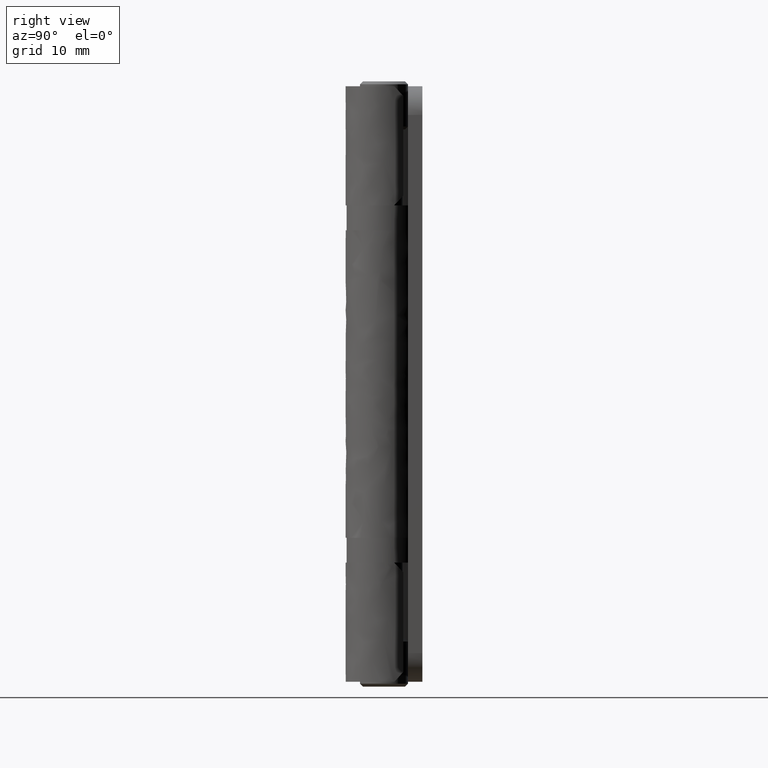
[diagram: clean part render]
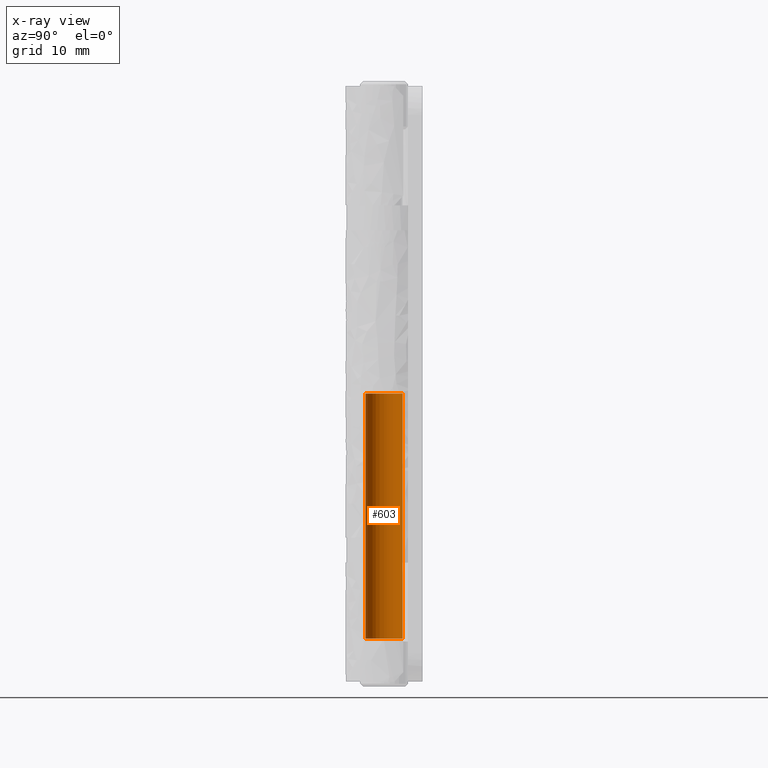
[diagram: x-ray — body ghosted, one internal face saturated and labeled with its STEP entity id]
A machine part, right view, then the same camera in x-ray: the body is ghosted and one INTERNAL B-rep face — a face not visible from any outside direction — is saturated and labeled: STEP entity #603.
In plain terms, the highlighted face is a freeform B-spline surface patch.
Its self-contained STEP definition (entity closure, byte-faithful):
#470=CARTESIAN_POINT('',(-1.924999999999833,0.0,4.499999999975998));
#471=VERTEX_POINT('',#470);
#472=CARTESIAN_POINT('',(-0.117518438749276,-1.921409486953075,4.499999999975998));
#473=VERTEX_POINT('',#472);
#474=CARTESIAN_POINT('',(-1.924999999999833,0.0,4.499999999975998));
#475=CARTESIAN_POINT('',(-1.924999999999832,-1.810859178656689,4.499999999975997));
#476=CARTESIAN_POINT('',(-0.117518438749276,-1.921409486953075,4.499999999975998));
#484=(BOUNDED_CURVE()B_SPLINE_CURVE(2,(#474,#475,#476),.UNSPECIFIED.,.F.,.U.)B_SPLINE_CURVE_WITH_KNOTS((3,3),(0.500000000000000,0.739332962228975),.UNSPECIFIED.)CURVE()GEOMETRIC_REPRESENTATION_ITEM()RATIONAL_B_SPLINE_CURVE((1.0,0.719603993298388,0.976072041645355))REPRESENTATION_ITEM(''));
#485=EDGE_CURVE('',#471,#473,#484,.T.);
#487=CARTESIAN_POINT('',(0.117518438749269,1.921409486953075,4.499999999975998));
#488=VERTEX_POINT('',#487);
#489=CARTESIAN_POINT('',(0.117518438749269,1.921409486953075,4.499999999975991));
#490=CARTESIAN_POINT('',(0.058814069422320,1.924999999999830,4.499999999975991));
#491=CARTESIAN_POINT('',(-3.245207E-015,1.924999999999830,4.499999999975998));
#492=CARTESIAN_POINT('',(-1.924999999999833,1.924999999999830,4.499999999975998));
#493=CARTESIAN_POINT('',(-1.924999999999833,0.0,4.499999999975998));
#501=(BOUNDED_CURVE()B_SPLINE_CURVE(2,(#489,#490,#491,#492,#493),.UNSPECIFIED.,.F.,.U.)B_SPLINE_CURVE_WITH_KNOTS((3,2,3),(0.239332962228975,0.250000000000000,0.500000000000000),.UNSPECIFIED.)CURVE()GEOMETRIC_REPRESENTATION_ITEM()RATIONAL_B_SPLINE_CURVE((0.976072041645356,0.987502787888160,1.0,0.707106781186548,1.0))REPRESENTATION_ITEM(''));
#502=EDGE_CURVE('',#488,#471,#501,.T.);
#537=CARTESIAN_POINT('',(0.117518438604586,1.921409486961924,3.862499999975391));
#538=CARTESIAN_POINT('',(-1.803891048357338,2.038927925566513,3.862499999975391));
#539=CARTESIAN_POINT('',(-1.921409486961927,0.117518438604589,3.862499999975391));
#540=CARTESIAN_POINT('',(-2.038927925566517,-1.803891048357335,3.862499999975391));
#541=CARTESIAN_POINT('',(-0.117518438604593,-1.921409486961924,3.862499999975391));
#542=CARTESIAN_POINT('',(0.117518438604589,1.921409486961924,30.653437500000621));
#543=CARTESIAN_POINT('',(-1.803891048357335,2.038927925566513,30.653437500000621));
#544=CARTESIAN_POINT('',(-1.921409486961924,0.117518438604589,30.653437500000621));
#545=CARTESIAN_POINT('',(-2.038927925566513,-1.803891048357335,30.653437500000621));
#546=CARTESIAN_POINT('',(-0.117518438604589,-1.921409486961924,30.653437500000621));
#554=(BOUNDED_SURFACE()B_SPLINE_SURFACE(2,1,((#537,#542),(#538,#543),(#539,#544),(#540,#545),(#541,#546)),.UNSPECIFIED.,.F.,.F.,.U.)B_SPLINE_SURFACE_WITH_KNOTS((3,2,3),(2,2),(0.0,3.189444430272549,6.378888860545098),(0.0,26.790937500025230),.UNSPECIFIED.)GEOMETRIC_REPRESENTATION_ITEM()RATIONAL_B_SPLINE_SURFACE(((1.0,1.0),(0.707106781186548,0.707106781186548),(1.0,1.0),(0.707106781186548,0.707106781186548),(1.0,1.0)))REPRESENTATION_ITEM('')SURFACE());
#555=ORIENTED_EDGE('',*,*,#502,.T.);
#556=ORIENTED_EDGE('',*,*,#485,.T.);
#557=CARTESIAN_POINT('',(-0.117518438749272,-1.921409486953075,30.0));
#558=VERTEX_POINT('',#557);
#559=CARTESIAN_POINT('',(-0.117518438749276,-1.921409486953075,4.499999999975998));
#560=CARTESIAN_POINT('',(-0.117518438749272,-1.921409486953075,30.0));
#561=QUASI_UNIFORM_CURVE('',1,(#559,#560),.UNSPECIFIED.,.F.,.U.);
#562=EDGE_CURVE('',#473,#558,#561,.T.);
#563=ORIENTED_EDGE('',*,*,#562,.T.);
#564=CARTESIAN_POINT('',(-1.924999999999830,0.0,30.0));
#565=VERTEX_POINT('',#564);
#566=CARTESIAN_POINT('',(-1.924999999999830,0.0,30.0));
#567=CARTESIAN_POINT('',(-1.924999999999830,-1.810859178656689,29.999999999999993));
#568=CARTESIAN_POINT('',(-0.117518438749273,-1.921409486953075,29.999999999999996));
#576=(BOUNDED_CURVE()B_SPLINE_CURVE(2,(#566,#567,#568),.UNSPECIFIED.,.F.,.U.)B_SPLINE_CURVE_WITH_KNOTS((3,3),(0.500000000000000,0.739332962228975),.UNSPECIFIED.)CURVE()GEOMETRIC_REPRESENTATION_ITEM()RATIONAL_B_SPLINE_CURVE((1.0,0.719603993298388,0.976072041645355))REPRESENTATION_ITEM(''));
#577=EDGE_CURVE('',#565,#558,#576,.T.);
#578=ORIENTED_EDGE('',*,*,#577,.F.);
#579=CARTESIAN_POINT('',(0.117518438749272,1.921409486953075,30.0));
#580=VERTEX_POINT('',#579);
#581=CARTESIAN_POINT('',(0.117518438749272,1.921409486953075,30.000000000000004));
#582=CARTESIAN_POINT('',(0.058814069422323,1.924999999999830,29.999999999999996));
#583=CARTESIAN_POINT('',(-1.224606E-016,1.924999999999830,30.0));
#584=CARTESIAN_POINT('',(-1.924999999999830,1.924999999999830,30.000000000000004));
#585=CARTESIAN_POINT('',(-1.924999999999830,0.0,30.0));
#593=(BOUNDED_CURVE()B_SPLINE_CURVE(2,(#581,#582,#583,#584,#585),.UNSPECIFIED.,.F.,.U.)B_SPLINE_CURVE_WITH_KNOTS((3,2,3),(0.239332962228975,0.250000000000000,0.500000000000000),.UNSPECIFIED.)CURVE()GEOMETRIC_REPRESENTATION_ITEM()RATIONAL_B_SPLINE_CURVE((0.976072041645356,0.987502787888160,1.0,0.707106781186548,1.0))REPRESENTATION_ITEM(''));
#594=EDGE_CURVE('',#580,#565,#593,.T.);
#595=ORIENTED_EDGE('',*,*,#594,.F.);
#596=CARTESIAN_POINT('',(0.117518438749269,1.921409486953075,4.499999999975998));
#597=CARTESIAN_POINT('',(0.117518438749272,1.921409486953075,30.0));
#598=QUASI_UNIFORM_CURVE('',1,(#596,#597),.UNSPECIFIED.,.F.,.U.);
#599=EDGE_CURVE('',#488,#580,#598,.T.);
#600=ORIENTED_EDGE('',*,*,#599,.F.);
#601=EDGE_LOOP('',(#555,#556,#563,#578,#595,#600));
#602=FACE_OUTER_BOUND('',#601,.T.);
#603=ADVANCED_FACE('',(#602),#554,.T.);